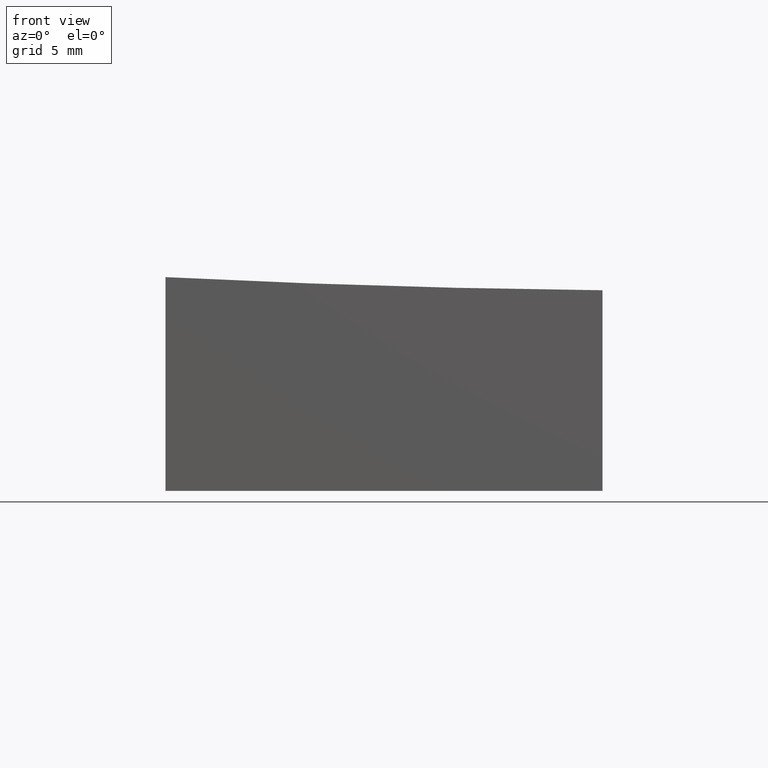
[diagram: clean part render]
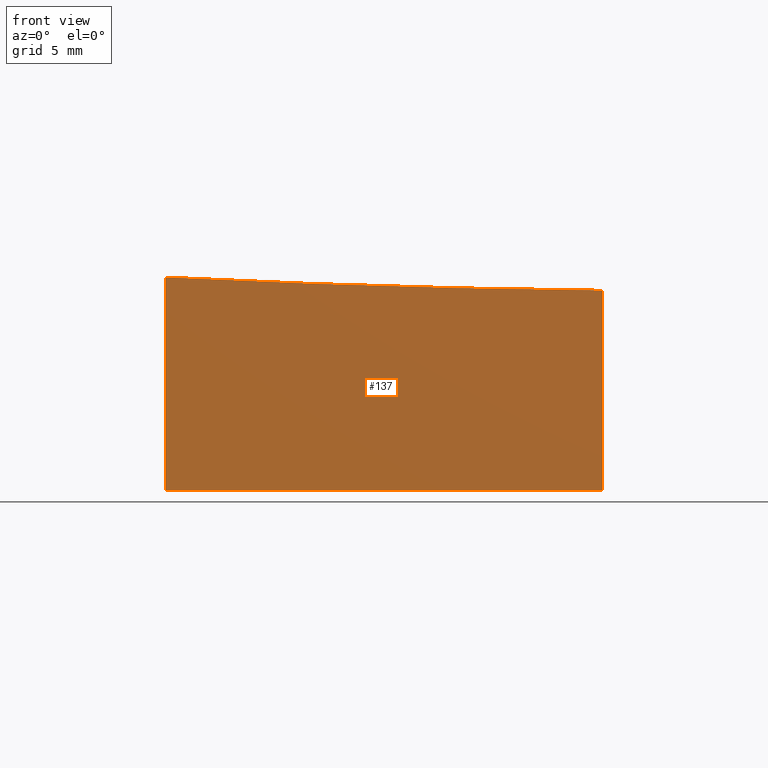
[diagram: same view with one face highlighted and labeled with its STEP entity id]
A machine part, front view. The second image highlights one B-rep face of the part: STEP entity #137.
In plain terms, the highlighted planar face has unit normal (-0, 1, 0).
Its self-contained STEP definition (entity closure, byte-faithful):
#11 = FACE_OUTER_BOUND ( 'NONE', #260, .T. ) ;
#14 = EDGE_CURVE ( 'NONE', #19, #218, #181, .T. ) ;
#19 = VERTEX_POINT ( 'NONE', #25 ) ;
#20 = ORIENTED_EDGE ( 'NONE', *, *, #72, .T. ) ;
#25 = CARTESIAN_POINT ( 'NONE',  ( -9.999999999999998224, -12.50000000000000355, -10.00000000000000000 ) ) ;
#28 = LINE ( 'NONE', #184, #107 ) ;
#30 = DIRECTION ( 'NONE',  ( -1.000000000000000000, -1.735265831305355409E-16, 0.000000000000000000 ) ) ;
#33 = CARTESIAN_POINT ( 'NONE',  ( 10.00000000000000178, -12.50000000000000000, 10.00000000000000000 ) ) ;
#49 = AXIS2_PLACEMENT_3D ( 'NONE', #268, #147, #30 ) ;
#52 = CARTESIAN_POINT ( 'NONE',  ( -9.999999999999998224, -12.50000000000000355, -0.2181386928964412775 ) ) ;
#54 = DIRECTION ( 'NONE',  ( -1.000000000000000000, -1.734723475976807094E-16, 0.000000000000000000 ) ) ;
#59 = CARTESIAN_POINT ( 'NONE',  ( 10.00000000000000178, -12.50000000000000000, -10.00000000000000000 ) ) ;
#62 = CARTESIAN_POINT ( 'NONE',  ( 10.00000000000000178, -12.50000000000000000, 10.00000000000000000 ) ) ;
#72 = EDGE_CURVE ( 'NONE', #86, #19, #28, .T. ) ;
#73 = VECTOR ( 'NONE', #155, 1000.000000000000000 ) ;
#76 = EDGE_CURVE ( 'NONE', #203, #86, #217, .T. ) ;
#86 = VERTEX_POINT ( 'NONE', #52 ) ;
#107 = VECTOR ( 'NONE', #229, 1000.000000000000000 ) ;
#124 = DIRECTION ( 'NONE',  ( -1.734723475976807094E-16, 1.000000000000000000, 0.000000000000000000 ) ) ;
#128 = LINE ( 'NONE', #33, #73 ) ;
#137 = ADVANCED_FACE ( 'NONE', ( #11 ), #266, .F. ) ;
#147 = DIRECTION ( 'NONE',  ( -1.734723475976807094E-16, 1.000000000000000000, 0.000000000000000000 ) ) ;
#155 = DIRECTION ( 'NONE',  ( -0.000000000000000000, -0.000000000000000000, -1.000000000000000000 ) ) ;
#163 = CARTESIAN_POINT ( 'NONE',  ( 10.00000000000000178, -12.50000000000000000, -10.00000000000000000 ) ) ;
#164 = DIRECTION ( 'NONE',  ( 1.000000000000000000, 1.734723475976807094E-16, -0.000000000000000000 ) ) ;
#181 = LINE ( 'NONE', #59, #199 ) ;
#184 = CARTESIAN_POINT ( 'NONE',  ( -9.999999999999998224, -12.50000000000000355, 10.00000000000000000 ) ) ;
#199 = VECTOR ( 'NONE', #164, 1000.000000000000000 ) ;
#203 = VERTEX_POINT ( 'NONE', #231 ) ;
#217 = CIRCLE ( 'NONE', #49, 499.8437255783051114 ) ;
#218 = VERTEX_POINT ( 'NONE', #163 ) ;
#229 = DIRECTION ( 'NONE',  ( -0.000000000000000000, -0.000000000000000000, -1.000000000000000000 ) ) ;
#231 = CARTESIAN_POINT ( 'NONE',  ( 10.00000000000000178, -12.50000000000000000, -0.8187171365233725240 ) ) ;
#253 = ORIENTED_EDGE ( 'NONE', *, *, #258, .F. ) ;
#255 = ORIENTED_EDGE ( 'NONE', *, *, #76, .T. ) ;
#258 = EDGE_CURVE ( 'NONE', #203, #218, #128, .T. ) ;
#260 = EDGE_LOOP ( 'NONE', ( #253, #255, #20, #271 ) ) ;
#262 = AXIS2_PLACEMENT_3D ( 'NONE', #62, #124, #54 ) ;
#266 = PLANE ( 'NONE',  #262 ) ;
#268 = CARTESIAN_POINT ( 'NONE',  ( 15.00000000000006573, -12.49999999999999822, 499.0000000000000000 ) ) ;
#271 = ORIENTED_EDGE ( 'NONE', *, *, #14, .T. ) ;